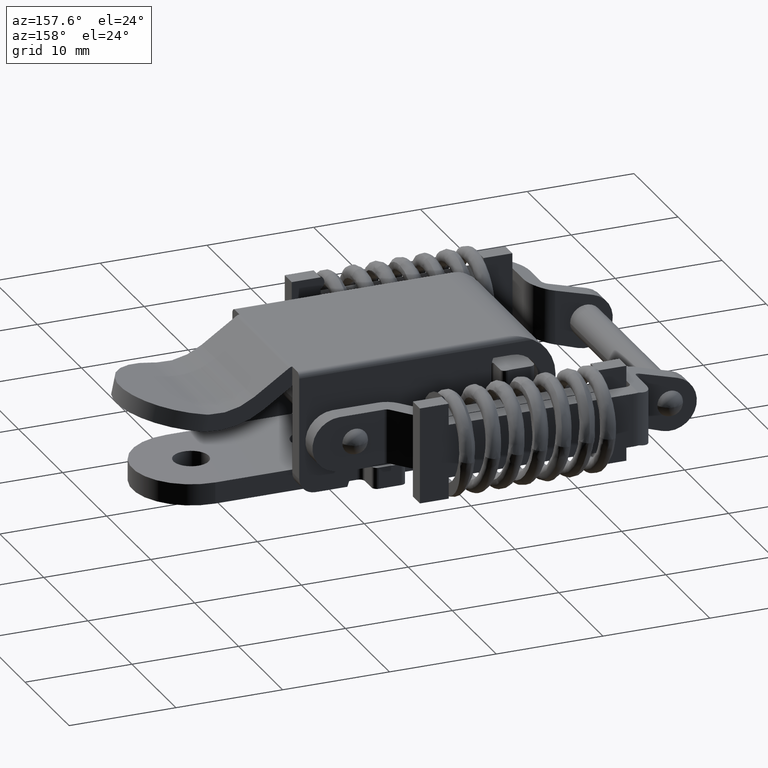
[diagram: clean part render]
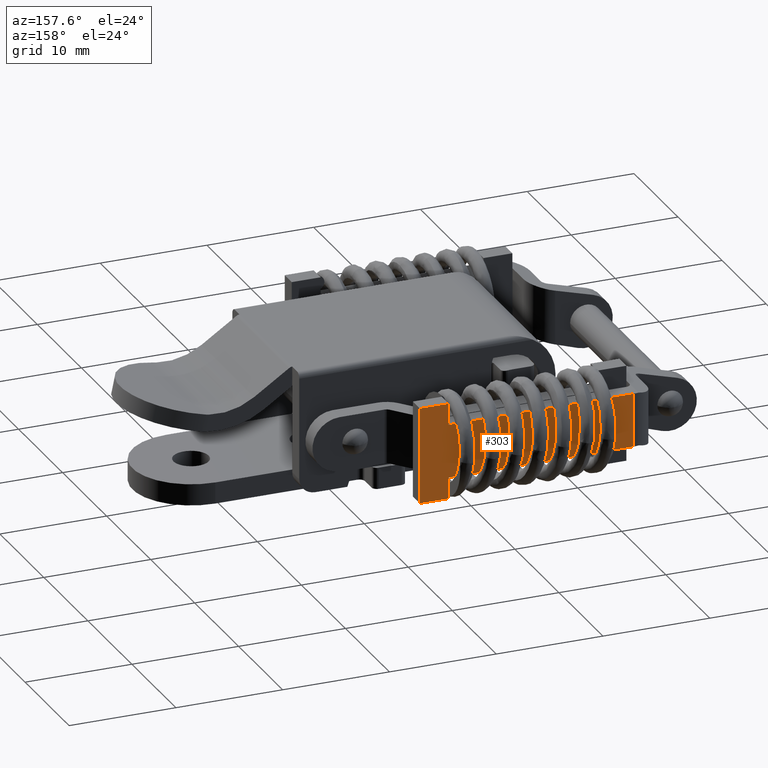
[diagram: same view with one face highlighted and labeled with its STEP entity id]
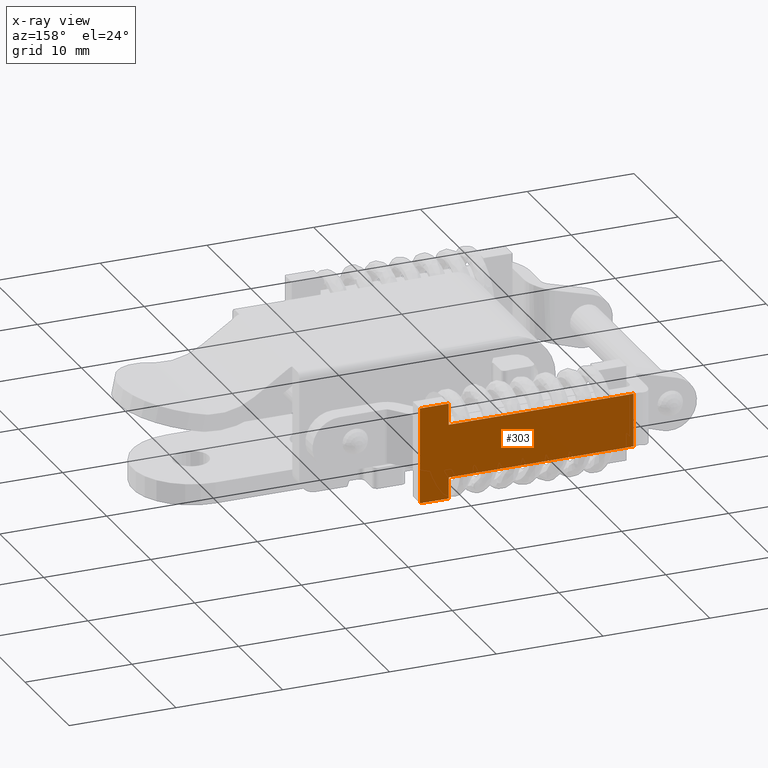
[diagram: x-ray of the same camera — body ghosted, the highlighted face saturated]
A machine part, auxiliary view. The second image highlights one B-rep face of the part: STEP entity #303.
The next image is the same camera in x-ray: the body ghosted, the highlighted face saturated — about 0% of this face is hidden behind the body in this view.
In plain terms, the highlighted planar face has unit normal (0, -1, 0).
Its self-contained STEP definition (entity closure, byte-faithful):
#303=ADVANCED_FACE('',(#1269),#1268,.F.);
#1268=PLANE('',#7414);
#1269=FACE_OUTER_BOUND('',#7415,.T.);
#7411=CARTESIAN_POINT('',(1.53500000000E+01,-5.40000000006E+00,1.99999999994E+00));
#7412=DIRECTION('',(-1.00000000000E+00,0.00000000000E+00,0.00000000000E+00));
#7413=DIRECTION('',(0.00000000000E+00,0.00000000000E+00,1.00000000000E+00));
#7414=AXIS2_PLACEMENT_3D('',#7411,#7412,#7413);
#7415=EDGE_LOOP('',(#9546,#9547,#9548,#9549,#9550,#9551,#9552,#9553));
#9546=ORIENTED_EDGE('',*,*,#10977,.F.);
#9547=ORIENTED_EDGE('',*,*,#11010,.T.);
#9548=ORIENTED_EDGE('',*,*,#11004,.F.);
#9549=ORIENTED_EDGE('',*,*,#11001,.F.);
#9550=ORIENTED_EDGE('',*,*,#10965,.F.);
#9551=ORIENTED_EDGE('',*,*,#11011,.F.);
#9552=ORIENTED_EDGE('',*,*,#11012,.F.);
#9553=ORIENTED_EDGE('',*,*,#11013,.F.);
#10965=EDGE_CURVE('',#12461,#12462,#12463,.T.);
#10977=EDGE_CURVE('',#12539,#12546,#12547,.T.);
#11001=EDGE_CURVE('',#12462,#12706,#12707,.T.);
#11004=EDGE_CURVE('',#12706,#12726,#12727,.T.);
#11010=EDGE_CURVE('',#12539,#12726,#12765,.T.);
#11011=EDGE_CURVE('',#12771,#12461,#12772,.T.);
#11012=EDGE_CURVE('',#12778,#12771,#12779,.T.);
#11013=EDGE_CURVE('',#12546,#12778,#12785,.T.);
#12461=VERTEX_POINT('',#18165);
#12462=VERTEX_POINT('',#18166);
#12463=LINE('',#18167,#18168);
#12539=VERTEX_POINT('',#18213);
#12546=VERTEX_POINT('',#18218);
#12547=LINE('',#18219,#18220);
#12706=VERTEX_POINT('',#18309);
#12707=LINE('',#18310,#18311);
#12726=VERTEX_POINT('',#18320);
#12727=LINE('',#18321,#18322);
#12765=LINE('',#18342,#18343);
#12771=VERTEX_POINT('',#18345);
#12772=LINE('',#18346,#18347);
#12778=VERTEX_POINT('',#18349);
#12779=LINE('',#18350,#18351);
#12785=LINE('',#18353,#18354);
#18165=CARTESIAN_POINT('',(1.53500000000E+01,-4.50000000006E+00,3.99999999995E+00));
#18166=CARTESIAN_POINT('',(1.53500000000E+01,-4.50000000006E+00,6.69999999995E+00));
#18167=CARTESIAN_POINT('',(1.53500000000E+01,-4.50000000006E+00,3.99999999995E+00));
#18168=VECTOR('',#18169,2.70000000000E+00);
#18169=DIRECTION('',(0.00000000000E+00,0.00000000000E+00,1.00000000000E+00));
#18213=CARTESIAN_POINT('',(1.53500000000E+01,2.49999999998E+00,2.40000000000E+01));
#18218=CARTESIAN_POINT('',(1.53500000000E+01,2.49999999996E+00,6.69999999995E+00));
#18219=CARTESIAN_POINT('',(1.53500000000E+01,2.49999999998E+00,2.40000000000E+01));
#18220=VECTOR('',#18221,1.73000000000E+01);
#18221=DIRECTION('',(0.00000000000E+00,-1.15606945981E-12,-1.00000000000E+00));
#18309=CARTESIAN_POINT('',(1.53500000000E+01,-2.50000000004E+00,6.69999999995E+00));
#18310=CARTESIAN_POINT('',(1.53500000000E+01,-4.50000000006E+00,6.69999999995E+00));
#18311=VECTOR('',#18312,2.00000000002E+00);
#18312=DIRECTION('',(0.00000000000E+00,1.00000000000E+00,0.00000000000E+00));
#18320=CARTESIAN_POINT('',(1.53500000000E+01,-2.50000000002E+00,2.40000000000E+01));
#18321=CARTESIAN_POINT('',(1.53500000000E+01,-2.50000000004E+00,6.69999999995E+00));
#18322=VECTOR('',#18323,1.73000000000E+01);
#18323=DIRECTION('',(0.00000000000E+00,1.15606945981E-12,1.00000000000E+00));
#18342=CARTESIAN_POINT('',(1.53500000000E+01,2.49999999998E+00,2.40000000000E+01));
#18343=VECTOR('',#18344,5.00000000000E+00);
#18344=DIRECTION('',(0.00000000000E+00,-1.00000000000E+00,0.00000000000E+00));
#18345=CARTESIAN_POINT('',(1.53500000000E+01,4.49999999994E+00,3.99999999995E+00));
#18346=CARTESIAN_POINT('',(1.53500000000E+01,4.49999999994E+00,3.99999999995E+00));
#18347=VECTOR('',#18348,9.00000000000E+00);
#18348=DIRECTION('',(0.00000000000E+00,-1.00000000000E+00,0.00000000000E+00));
#18349=CARTESIAN_POINT('',(1.53500000000E+01,4.49999999994E+00,6.69999999995E+00));
#18350=CARTESIAN_POINT('',(1.53500000000E+01,4.49999999994E+00,6.69999999995E+00));
#18351=VECTOR('',#18352,2.70000000000E+00);
#18352=DIRECTION('',(0.00000000000E+00,0.00000000000E+00,-1.00000000000E+00));
#18353=CARTESIAN_POINT('',(1.53500000000E+01,2.49999999996E+00,6.69999999995E+00));
#18354=VECTOR('',#18355,1.99999999998E+00);
#18355=DIRECTION('',(0.00000000000E+00,1.00000000000E+00,0.00000000000E+00));